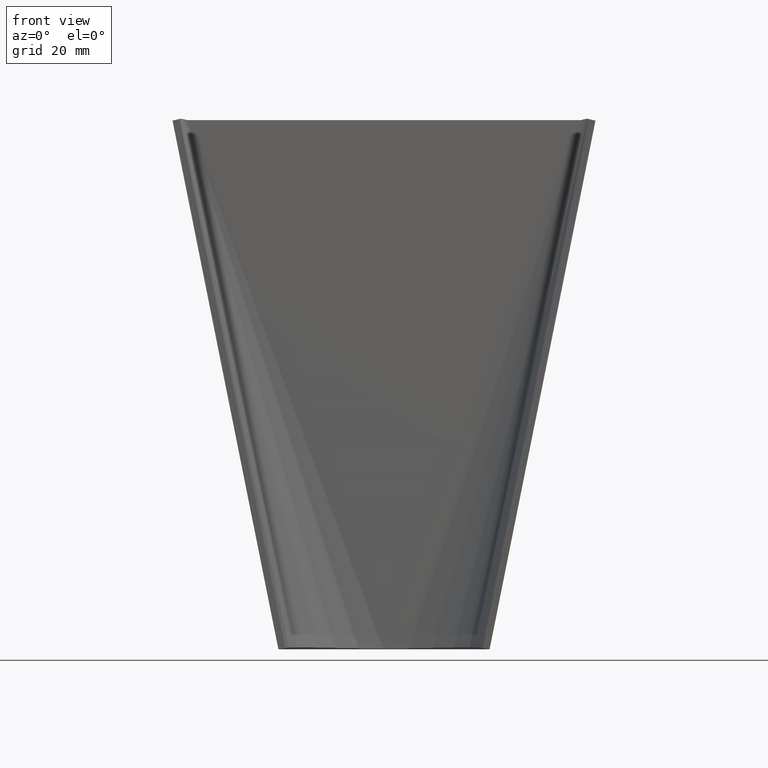
[diagram: clean part render]
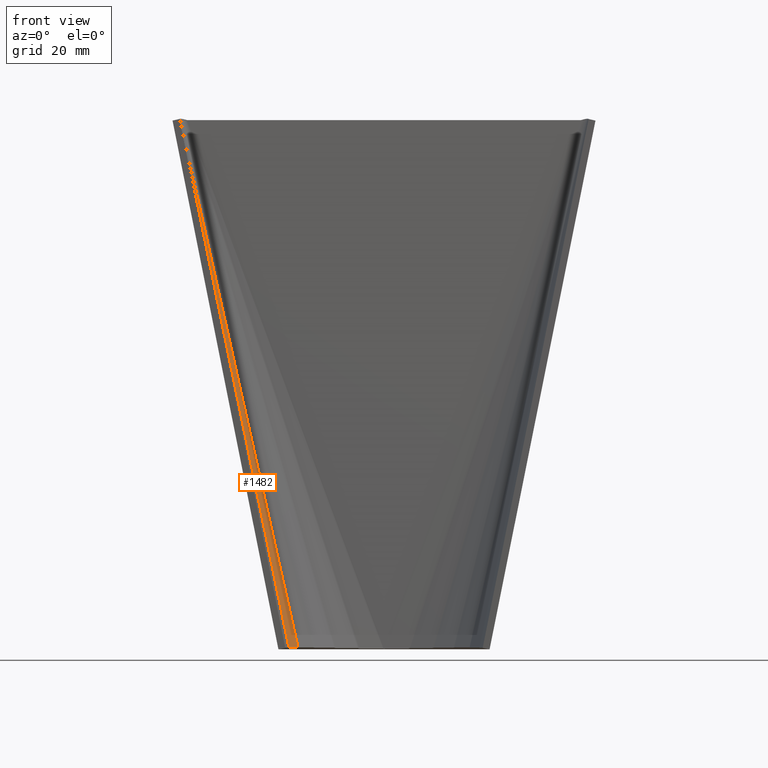
[diagram: same view with one face highlighted and labeled with its STEP entity id]
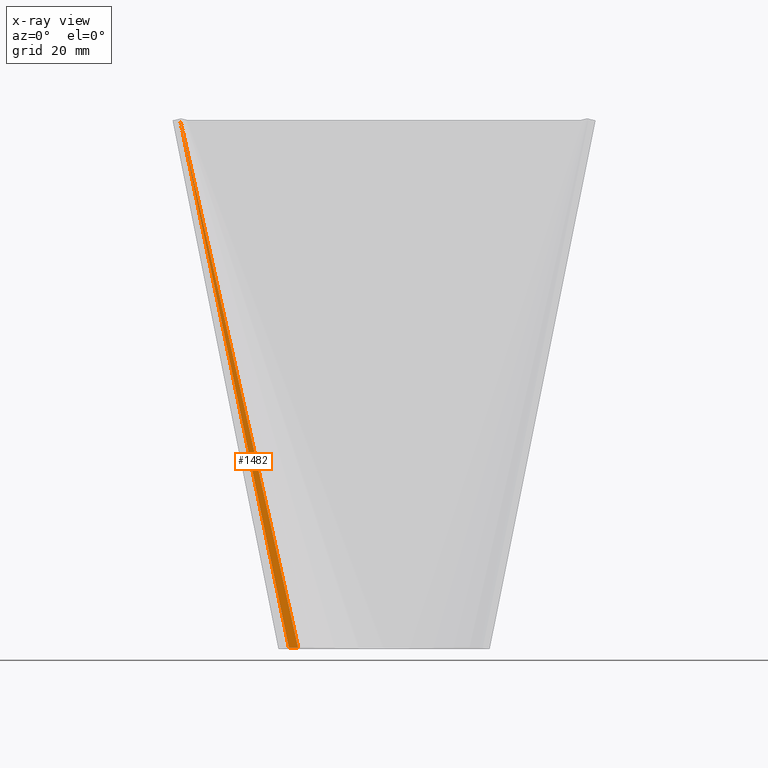
[diagram: x-ray of the same camera — body ghosted, the highlighted face saturated]
A machine part, front view. The second image highlights one B-rep face of the part: STEP entity #1482.
The next image is the same camera in x-ray: the body ghosted, the highlighted face saturated — about 0% of this face is hidden behind the body in this view.
In plain terms, the highlighted planar face has unit normal (-0.893, 0.3699, -0.2563).
Its self-contained STEP definition (entity closure, byte-faithful):
#183=FACE_OUTER_BOUND($,#292,.T.);
#292=EDGE_LOOP($,(#1076,#1077,#1078));
#419=LINE($,#2256,#567);
#420=LINE($,#2259,#568);
#421=LINE($,#2260,#569);
#567=VECTOR($,#1832,155.932026839395);
#568=VECTOR($,#1835,6.80454225296744);
#569=VECTOR($,#1836,155.414488283742);
#712=VERTEX_POINT($,#2252);
#713=VERTEX_POINT($,#2254);
#714=VERTEX_POINT($,#2258);
#841=EDGE_CURVE($,#712,#713,#419,.T.);
#842=EDGE_CURVE($,#714,#713,#420,.T.);
#843=EDGE_CURVE($,#712,#714,#421,.T.);
#1076=ORIENTED_EDGE($,*,*,#841,.T.);
#1077=ORIENTED_EDGE($,*,*,#842,.F.);
#1078=ORIENTED_EDGE($,*,*,#843,.F.);
#1420=PLANE($,#1612);
#1482=ADVANCED_FACE($,(#183),#1420,.F.);
#1612=AXIS2_PLACEMENT_3D($,#2257,#1833,#1834);
#1832=DIRECTION($,(0.198285714126393,-0.187937038446385,-0.961957610892179));
#1833=DIRECTION('center_axis',(-0.893009615656661,0.369896694134574,-0.256340129540922));
#1834=DIRECTION('ref_axis',(-0.275909599979536,0.,0.961183589455798));
#1835=DIRECTION($,(-0.38268343236509,-0.923879532511287,0.));
#1836=DIRECTION($,(0.215701118037727,-0.148112484631984,-0.965160981170196));
#2252=CARTESIAN_POINT('',(-57.9126943994218,36.8085684605595,0.512680259081845));
#2254=CARTESIAN_POINT('',(-26.9936011023964,7.50316513742127,-149.487319740918));
#2256=CARTESIAN_POINT($,(-57.9126943994218,36.8085684605595,0.512680259081843));
#2257=CARTESIAN_POINT('Origin',(-57.9126943994218,36.8085684605595,0.512680259081843));
#2258=CARTESIAN_POINT('',(-24.3896155173575,13.7897424530461,-149.487319740918));
#2259=CARTESIAN_POINT($,(-24.1947428822199,14.2602066117309,-149.487319740918));
#2260=CARTESIAN_POINT($,(-57.9126943994218,36.8085684605595,0.512680259081844));